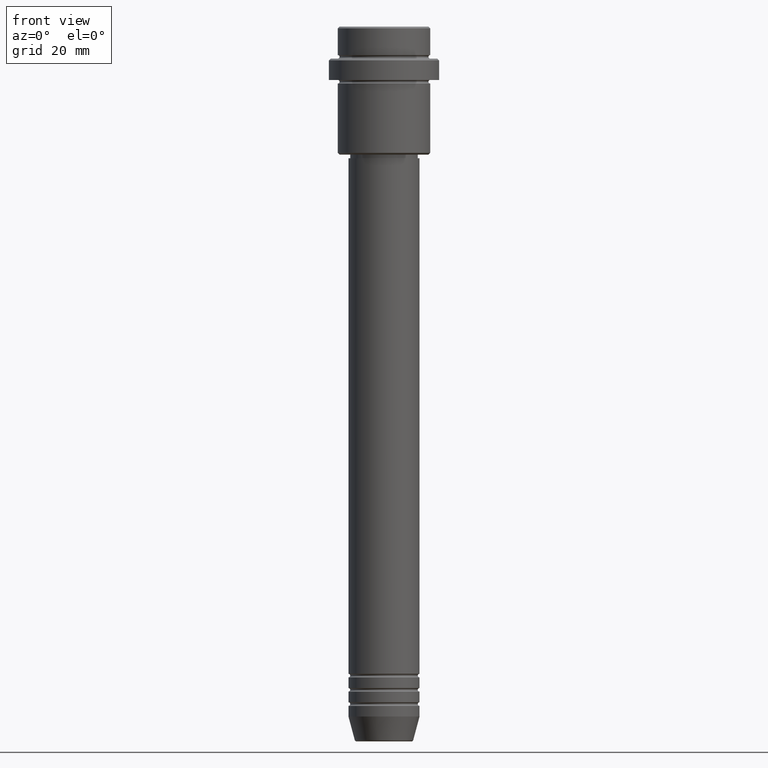
[diagram: clean part render]
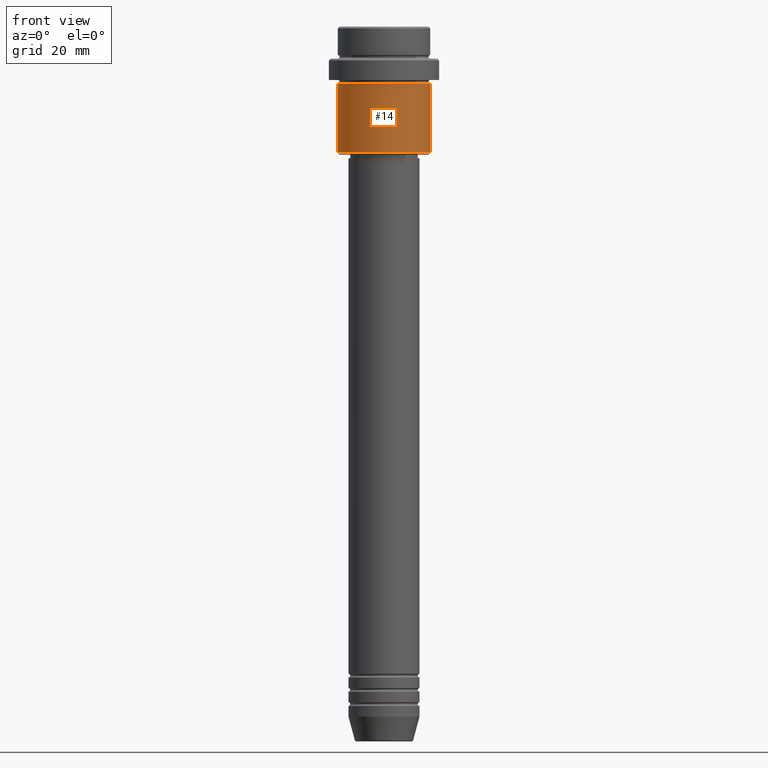
[diagram: same view with one face highlighted and labeled with its STEP entity id]
A machine part, front view. The second image highlights one B-rep face of the part: STEP entity #14.
In plain terms, the highlighted cylindrical surface (partial cylindrical patch) has radius 13 mm, axis along (-0, -0, 1).
Its self-contained STEP definition (entity closure, byte-faithful):
#11 = EDGE_CURVE ( 'NONE', #62, #78, #229, .T. ) ;
#14 = ADVANCED_FACE ( 'NONE', ( #1064 ), #401, .T. ) ;
#62 = VERTEX_POINT ( 'NONE', #777 ) ;
#71 = AXIS2_PLACEMENT_3D ( 'NONE', #734, #1301, #299 ) ;
#78 = VERTEX_POINT ( 'NONE', #1229 ) ;
#85 = ORIENTED_EDGE ( 'NONE', *, *, #499, .T. ) ;
#124 = LINE ( 'NONE', #546, #1388 ) ;
#193 = DIRECTION ( 'NONE',  ( 1.000000000000000000, 0.000000000000000000, 0.000000000000000000 ) ) ;
#223 = ORIENTED_EDGE ( 'NONE', *, *, #11, .F. ) ;
#229 = CIRCLE ( 'NONE', #1033, 13.00000000000000000 ) ;
#252 = EDGE_CURVE ( 'NONE', #1339, #78, #124, .T. ) ;
#299 = DIRECTION ( 'NONE',  ( -1.000000000000000000, 0.000000000000000000, 0.000000000000000000 ) ) ;
#401 = CYLINDRICAL_SURFACE ( 'NONE', #1408, 13.00000000000000000 ) ;
#499 = EDGE_CURVE ( 'NONE', #1275, #1339, #750, .T. ) ;
#512 = CARTESIAN_POINT ( 'NONE',  ( 0.000000000000000000, 0.000000000000000000, 0.000000000000000000 ) ) ;
#546 = CARTESIAN_POINT ( 'NONE',  ( 13.00000000000000000, 0.000000000000000000, 0.000000000000000000 ) ) ;
#585 = CARTESIAN_POINT ( 'NONE',  ( -13.00000000000000000, 1.592040838891559095E-15, 0.000000000000000000 ) ) ;
#596 = CARTESIAN_POINT ( 'NONE',  ( -13.00000000000000000, 1.592040838891559095E-15, -35.50000000000002842 ) ) ;
#619 = DIRECTION ( 'NONE',  ( -0.000000000000000000, -0.000000000000000000, 1.000000000000000000 ) ) ;
#659 = ORIENTED_EDGE ( 'NONE', *, *, #252, .T. ) ;
#716 = DIRECTION ( 'NONE',  ( 1.000000000000000000, 0.000000000000000000, 0.000000000000000000 ) ) ;
#732 = DIRECTION ( 'NONE',  ( -0.000000000000000000, -0.000000000000000000, 1.000000000000000000 ) ) ;
#734 = CARTESIAN_POINT ( 'NONE',  ( 0.000000000000000000, 0.000000000000000000, -35.50000000000002842 ) ) ;
#750 = CIRCLE ( 'NONE', #71, 13.00000000000000000 ) ;
#777 = CARTESIAN_POINT ( 'NONE',  ( -13.00000000000000000, 1.592040838891559095E-15, -16.00000000000000000 ) ) ;
#853 = ORIENTED_EDGE ( 'NONE', *, *, #860, .F. ) ;
#860 = EDGE_CURVE ( 'NONE', #1275, #62, #1262, .T. ) ;
#935 = EDGE_LOOP ( 'NONE', ( #853, #85, #659, #223 ) ) ;
#936 = CARTESIAN_POINT ( 'NONE',  ( 0.000000000000000000, 0.000000000000000000, -16.00000000000000000 ) ) ;
#1033 = AXIS2_PLACEMENT_3D ( 'NONE', #936, #619, #193 ) ;
#1047 = DIRECTION ( 'NONE',  ( -0.000000000000000000, -0.000000000000000000, 1.000000000000000000 ) ) ;
#1051 = VECTOR ( 'NONE', #1047, 1000.000000000000000 ) ;
#1056 = CARTESIAN_POINT ( 'NONE',  ( 13.00000000000000000, 0.000000000000000000, -35.50000000000002842 ) ) ;
#1064 = FACE_OUTER_BOUND ( 'NONE', #935, .T. ) ;
#1229 = CARTESIAN_POINT ( 'NONE',  ( 13.00000000000000000, 0.000000000000000000, -16.00000000000000000 ) ) ;
#1262 = LINE ( 'NONE', #585, #1051 ) ;
#1275 = VERTEX_POINT ( 'NONE', #596 ) ;
#1301 = DIRECTION ( 'NONE',  ( -0.000000000000000000, -0.000000000000000000, 1.000000000000000000 ) ) ;
#1339 = VERTEX_POINT ( 'NONE', #1056 ) ;
#1344 = DIRECTION ( 'NONE',  ( -0.000000000000000000, -0.000000000000000000, 1.000000000000000000 ) ) ;
#1388 = VECTOR ( 'NONE', #1344, 1000.000000000000000 ) ;
#1408 = AXIS2_PLACEMENT_3D ( 'NONE', #512, #732, #716 ) ;